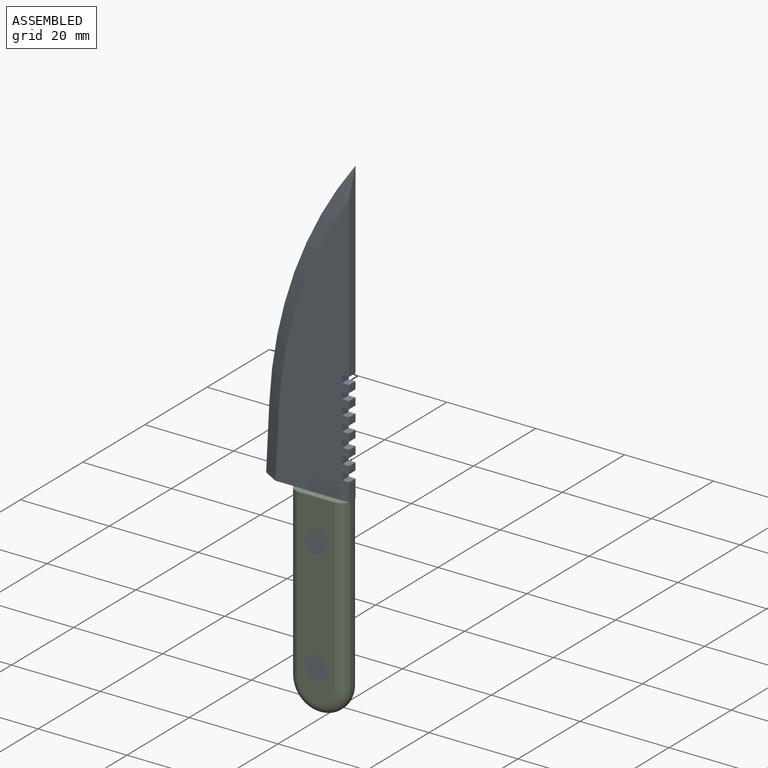
[diagram: assembled view]
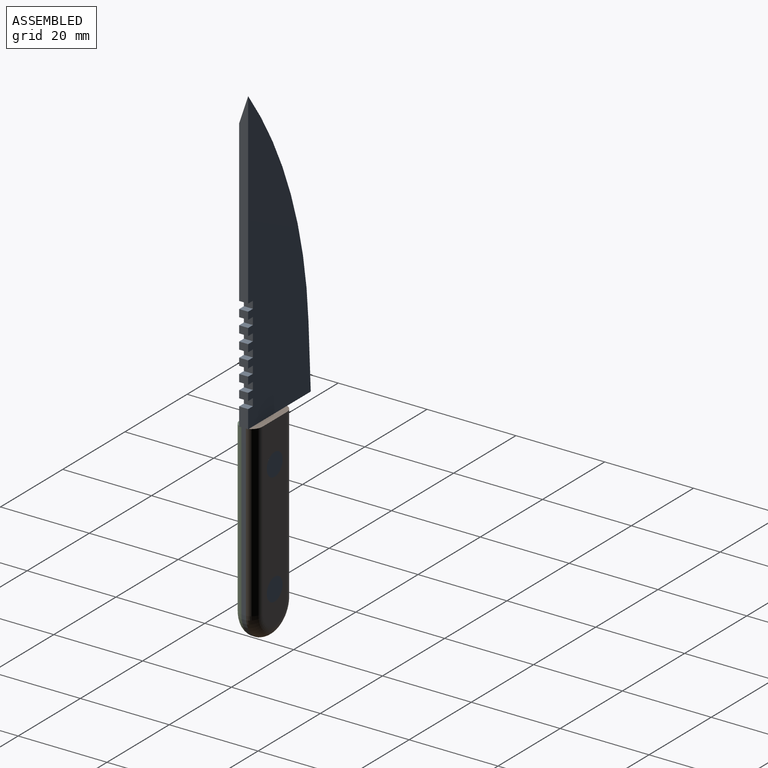
[diagram: assembled view, second angle]
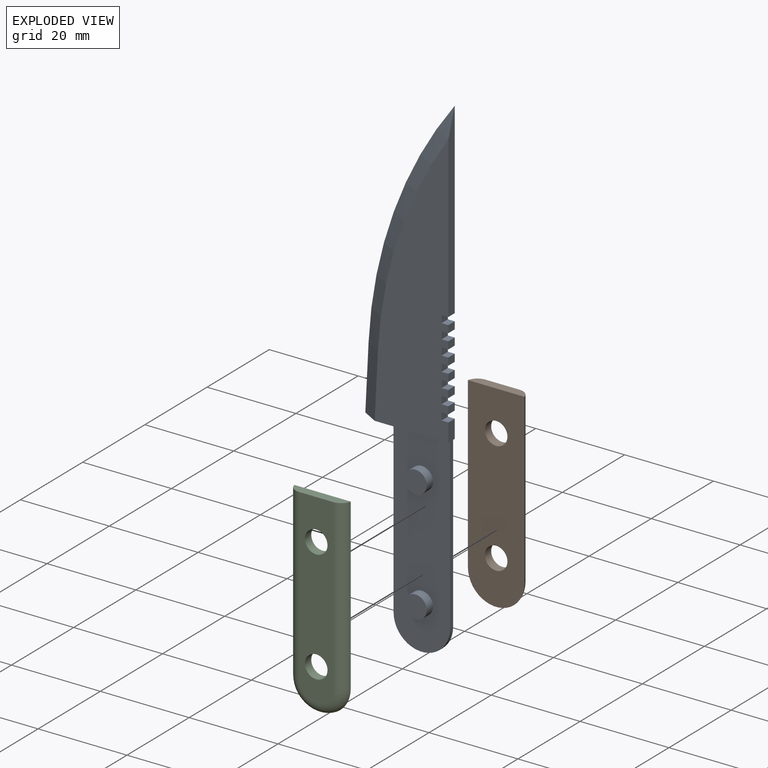
[diagram: exploded view]
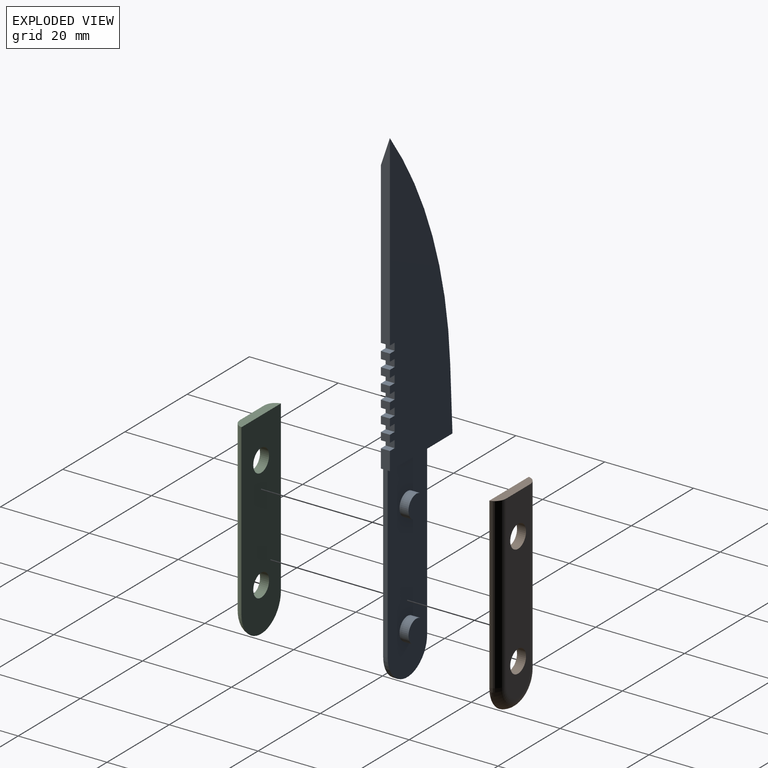
[diagram: exploded view, second angle]
ASSEMBLY  parts=3 mates=2
PART A: 46 faces, bbox 22.9x5.1x112.2 mm
  f0: plane 2.03x1.65mm, normal (1,0,0), area 3.4mm2, adj f1,f29,f30,f31
  f1: plane 2.03x1.52mm, normal (0,0,1), area 3.1mm2, adj f0,f2,f30,f31
  f2: plane 2.03x1.65mm, normal (1,0,0), area 3.4mm2, adj f1,f3,f30,f31
  f3: plane 2.03x1.52mm, normal (0,0,-1), area 3.1mm2, adj f2,f4,f30,f31
  f4: plane 2.03x1.65mm, normal (1,0,0), area 3.4mm2, adj f3,f5,f30,f31
  f5: plane 2.03x1.52mm, normal (0,0,1), area 3.1mm2, adj f4,f6,f30,f31
  f6: plane 2.03x1.65mm, normal (1,0,0), area 3.4mm2, adj f5,f7,f30,f31
  f7: plane 2.03x1.52mm, normal (0,0,-1), area 3.1mm2, adj f6,f8,f30,f31
  f8: plane 2.03x1.65mm, normal (1,0,0), area 3.4mm2, adj f7,f9,f30,f31
  f9: plane 2.03x1.52mm, normal (0,0,1), area 3.1mm2, adj f8,f10,f30,f31
  f10: plane 2.03x1.65mm, normal (1,0,0), area 3.4mm2, adj f9,f11,f30,f31
  f11: plane 2.03x1.52mm, normal (0,0,-1), area 3.1mm2, adj f10,f12,f30,f31
  f12: plane 2.03x1.65mm, normal (1,0,0), area 3.4mm2, adj f11,f13,f30,f31
  f13: plane 2.03x1.52mm, normal (0,0,1), area 3.1mm2, adj f12,f14,f30,f31
  f14: plane 2.03x1.65mm, normal (1,0,0), area 3.4mm2, adj f13,f15,f30,f31
  f15: plane 2.03x1.52mm, normal (0,0,-1), area 3.1mm2, adj f14,f16,f30,f31
  f16: plane 42.19x2.03mm, normal (1,0,0), area 79.7mm2, adj f15,f30,f31,f45
  f17: plane 20.11x2.03mm, normal (0,0,-1), area 24.4mm2, adj f18,f30,f31,f33,f34,f35,f44
  f18: plane 42.21x2.03mm, normal (1,0,0), area 47.1mm2, adj f17,f19,f30,f31,f32,f34,f35
  f19: plane 2.03x1.52mm, normal (0,0,1), area 3.1mm2, adj f18,f20,f30,f31
  f20: plane 2.03x1.65mm, normal (1,0,0), area 3.4mm2, adj f19,f21,f30,f31
  f21: plane 2.03x1.52mm, normal (0,0,-1), area 3.1mm2, adj f20,f22,f30,f31
  f22: plane 2.03x1.65mm, normal (1,0,0), area 3.4mm2, adj f21,f23,f30,f31
  f23: plane 2.03x1.52mm, normal (0,0,1), area 3.1mm2, adj f22,f24,f30,f31
  f24: plane 2.03x1.65mm, normal (1,0,0), area 3.4mm2, adj f23,f25,f30,f31
  f25: plane 2.03x1.52mm, normal (0,0,-1), area 3.1mm2, adj f24,f26,f30,f31
  f26: plane 2.03x1.65mm, normal (1,0,0), area 3.4mm2, adj f25,f27,f30,f31
  f27: plane 2.03x1.52mm, normal (0,0,1), area 3.1mm2, adj f26,f28,f30,f31
  f28: plane 2.03x1.65mm, normal (1,0,0), area 3.4mm2, adj f27,f29,f30,f31
  f29: plane 2.03x1.52mm, normal (0,0,-1), area 3.1mm2, adj f0,f28,f30,f31
  f30: plane 61.72x16.59mm, normal (0,-1,0), area 705.7mm2, adj f0,f1,f2,f3,f4,f5,f6,f7
  f31: plane 67.76x20.11mm, normal (0,1,0), area 946.9mm2, adj f0,f1,f2,f3,f4,f5,f6,f7
  f32: cylinder r=6.35mm len=12.7mm, axis (0,1,0), area 20.3mm2, adj f18,f33,f34,f35
  f33: plane 38.1x1.02mm, normal (-1,0,0), area 38.7mm2, adj f17,f32,f34,f35
  f34: plane 44.45x12.7mm, normal (0,-1,0), area 506.7mm2, adj f17,f18,f32,f33,f36,f38
  f35: plane 44.45x12.7mm, normal (0,1,0), area 506.7mm2, adj f17,f18,f32,f33,f40,f42
  f36: cylinder r=2.54mm len=5.08mm, axis (0,1,0), area 32.4mm2, adj f34,f37
  f37: plane 5.08x5.08mm, normal (0,-1,0), area 20.3mm2, adj f36
  f38: cylinder r=2.54mm len=5.08mm, axis (0,1,0), area 32.4mm2, adj f34,f39
  f39: plane 5.08x5.08mm, normal (0,-1,0), area 20.3mm2, adj f38
  f40: cylinder r=2.54mm len=5.08mm, axis (0,-1,0), area 32.4mm2, adj f35,f41
  f41: plane 5.08x5.08mm, normal (0,1,0), area 20.3mm2, adj f40
  f42: cylinder r=2.54mm len=5.08mm, axis (0,-1,0), area 32.4mm2, adj f35,f43
  f43: plane 5.08x5.08mm, normal (0,1,0), area 20.3mm2, adj f42
  f44: plane 14.45x4.24mm, normal (-0.5,-0.87,0.02), area 58.5mm2, adj f17,f30,f31,f45
  f45: cone r=92.8mm half-angle=60deg, axis (0,1,0), area 220mm2, adj f16,f30,f31,f44
PART B: 8 faces, bbox 13.9x2.5x45 mm
  f0: plane 12.7x2.03mm, normal (0,0,1), area 23.3mm2, adj f1,f2,f5,f7
  f1: plane 41.96x7.72mm, normal (0,1,0), area 277.1mm2, adj f0,f3,f4,f5,f6,f7
  f2: plane 44.45x12.7mm, normal (0,-1,0), area 506.7mm2, adj f0,f3,f4,f5,f6,f7
  f3: cylinder r=2.54mm len=5.08mm, axis (0,1,0), area 32.4mm2, adj f1,f2
  f4: cylinder r=2.54mm len=5.08mm, axis (0,1,0), area 32.4mm2, adj f1,f2
  f5: cylinder r=2.54mm len=38.1mm, axis (0,0,-1), area 132.5mm2, adj f0,f1,f2,f6
  f6: torus R=3.86mm, axis (0,-1,0), area 58.4mm2, adj f1,f2,f5,f7
  f7: cylinder r=2.54mm len=38.1mm, axis (0,0,-1), area 132.5mm2, adj f0,f1,f2,f6
PART C: 8 faces, bbox 13.9x2.5x45 mm
  f0: plane 12.7x2.03mm, normal (0,0,1), area 23.3mm2, adj f1,f2,f5,f7
  f1: plane 41.96x7.72mm, normal (0,-1,0), area 277.1mm2, adj f0,f3,f4,f5,f6,f7
  f2: plane 44.45x12.7mm, normal (0,1,0), area 506.7mm2, adj f0,f3,f4,f5,f6,f7
  f3: cylinder r=2.54mm len=5.08mm, axis (0,-1,0), area 32.4mm2, adj f1,f2
  f4: cylinder r=2.54mm len=5.08mm, axis (0,-1,0), area 32.4mm2, adj f1,f2
  f5: cylinder r=2.54mm len=38.1mm, axis (0,0,-1), area 132.5mm2, adj f0,f1,f2,f6
  f6: torus R=3.86mm, axis (0,1,0), area 58.4mm2, adj f1,f2,f5,f7
  f7: cylinder r=2.54mm len=38.1mm, axis (0,0,-1), area 132.5mm2, adj f0,f1,f2,f6
PLACE A t=(-52.89,-26.26,15.29)mm
PLACE B t=(-65.59,-26.77,-22.68)mm
PLACE C t=(-65.59,-26.77,-22.68)mm
MATE fastened A.f36 <-> C.f3  axis (0,-1,0) through (-59.24,-28.8,-6.78)mm
MATE fastened A.f36 <-> B.f3  axis (0,1,0) through (-59.24,-23.72,-6.78)mm
